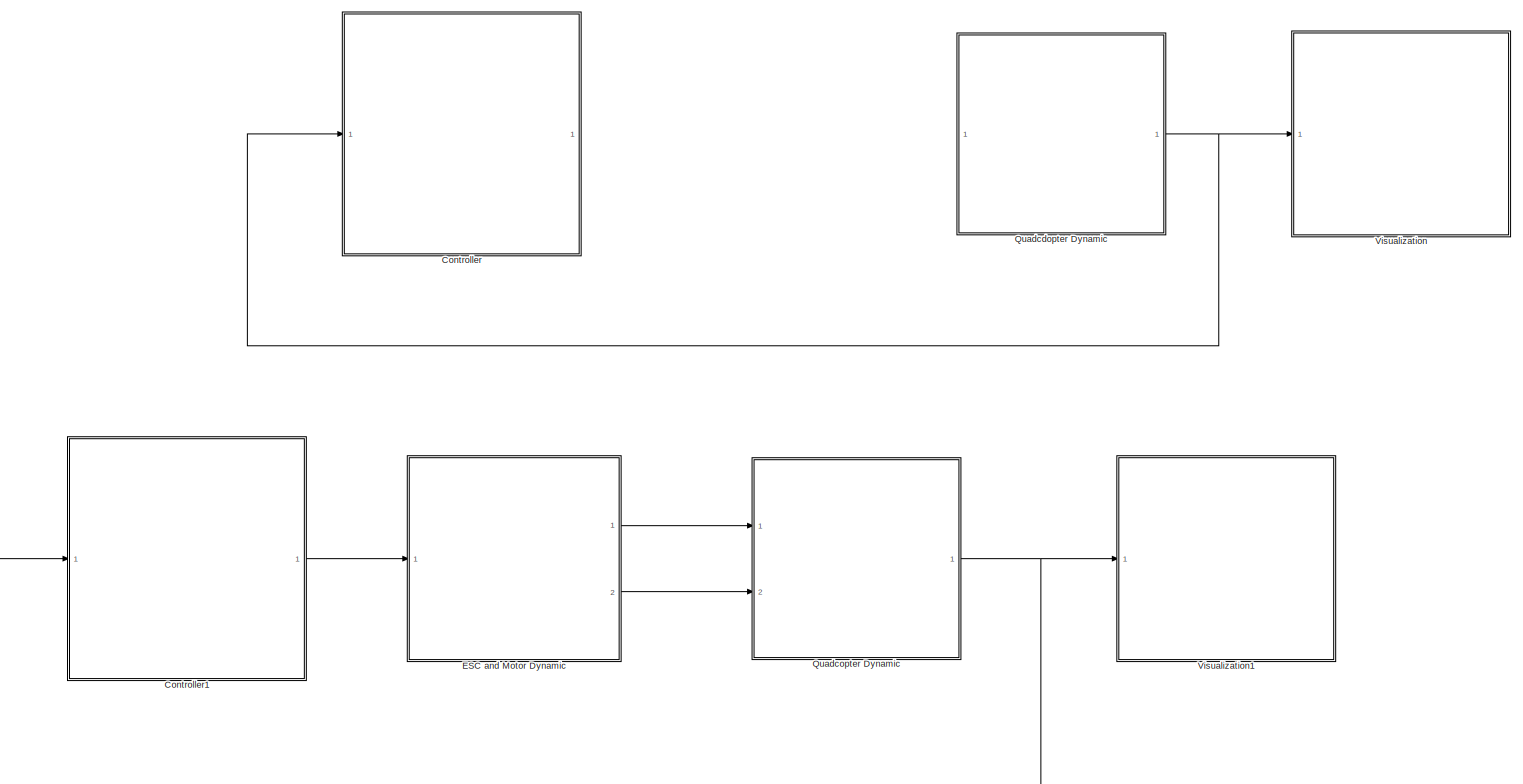
[diagram: root canvas - part 1/1, most of the canvas]
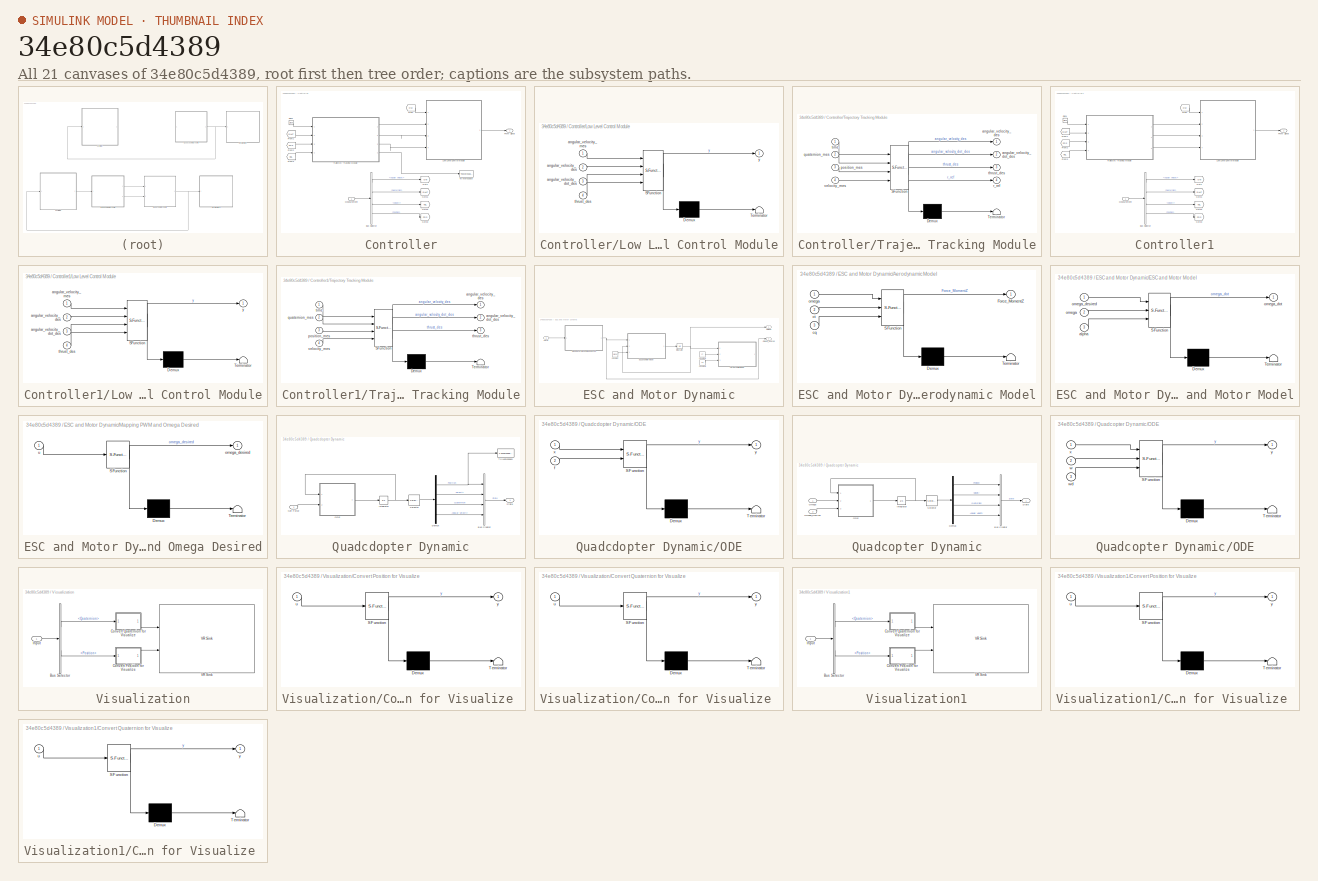
[diagram: thumbnail index - all 21 canvases of the model, root first then tree order]
MODEL slx_34e80c5d4389
KIND model
CONFIG AbsTol = auto
CONFIG EnableMultiTasking = off
CONFIG FixedStep = auto
CONFIG InitFcn = current_path = pwd;\nroot_folder = strfind(current_path, 'Trajectory_Tracking_Simulation');\nroot_path = current_path( 1 : ( root_folder + 29 ) );\ninitial_folder_path = string(root_path) + '/Initial';\naddpath(initial_folder_path);\nrun('Initial_Script.m');
CONFIG MaxStep = auto
CONFIG MinStep = auto
CONFIG RelTol = 1e-3
CONFIG SampleTimeConstraint = Unconstrained
CONFIG Solver = VariableStepAuto
CONFIG SolverName = VariableStepAuto
CONFIG StartTime = 0.0
CONFIG StopTime = 35
WORKSPACE source: MAT-file member
WORKSPACE object = [3707764736 2 1 1 1 1]
BLOCK [SubSystem] Controller
  Commented = on
  Ports = [1, 1]
  RequestExecContextInheritance = off
BLOCK [BusSelector] Controller/Bus Selector
  OutputAsBus = off
  OutputSignals = Angular Velocity,Quaternion,Velocity,Position
  Ports = [1, 4]
BLOCK [Clock] Controller/Clock
BLOCK [From] Controller/From
  GotoTag = OM
BLOCK [From] Controller/From1
  GotoTag = QUAT
BLOCK [From] Controller/From2
  GotoTag = POS
BLOCK [From] Controller/From3
  GotoTag = VEL
BLOCK [Goto] Controller/Goto
  GotoTag = OM
BLOCK [Goto] Controller/Goto1
  GotoTag = QUAT
BLOCK [Goto] Controller/Goto2
  GotoTag = VEL
BLOCK [Goto] Controller/Goto3
  GotoTag = POS
BLOCK [SubSystem] Controller/Low Level Control Module
  ErrorFcn = Stateflow.Translate.translate
  PermitHierarchicalResolution = ExplicitOnly
  Ports = [4, 1]
  RequestExecContextInheritance = off
  SFBlockType = MATLAB Function
  TreatAsAtomicUnit = on
BLOCK [Demux] Controller/Low Level Control Module/ Demux 
  Outputs = 1
  Ports = [1, 1]
BLOCK [S-Function] Controller/Low Level Control Module/ SFunction 
  EnableBusSupport = on
  FunctionName = sf_sfun
  PortCounts = [4 2]
  Ports = [4, 2]
  SFcnIsStateOwnerBlock = off
  SFunctionDeploymentMode = off
  Tag = Stateflow S-Function Trajectory_Tracking_Simulink 2
BLOCK [Terminator] Controller/Low Level Control Module/ Terminator 
BLOCK [Inport] Controller/Low Level Control Module/angular_velocity_des
  IconDisplay = Port number
  Port = 2
BLOCK [Inport] Controller/Low Level Control Module/angular_velocity_dot_des
  IconDisplay = Port number
  Port = 3
BLOCK [Inport] Controller/Low Level Control Module/angular_velocity_mes
  IconDisplay = Port number
BLOCK [Inport] Controller/Low Level Control Module/thrust_des
  IconDisplay = Port number
  Port = 4
BLOCK [Outport] Controller/Low Level Control Module/y
  IconDisplay = Port number
BLOCK [Inport] Controller/Measurement 
  IconDisplay = Port number
BLOCK [Outport] Controller/PWM Signal
  IconDisplay = Port number
BLOCK [ToWorkspace] Controller/To Workspace
  FixptAsFi = on
  MaxDataPoints = inf
  Ports = [1]
  SampleTime = -1
  SaveFormat = Timeseries
  VariableName = r_ref
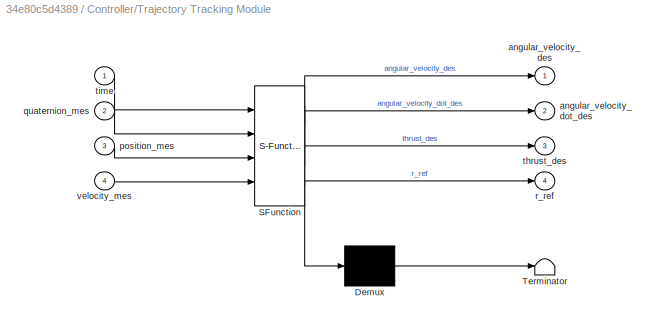
BLOCK [SubSystem] Controller/Trajectory Tracking Module
  ErrorFcn = Stateflow.Translate.translate
  PermitHierarchicalResolution = ExplicitOnly
  Ports = [4, 4]
  RequestExecContextInheritance = off
  SFBlockType = MATLAB Function
  TreatAsAtomicUnit = on
BLOCK [Demux] Controller/Trajectory Tracking Module/ Demux 
  Outputs = 1
  Ports = [1, 1]
BLOCK [S-Function] Controller/Trajectory Tracking Module/ SFunction 
  EnableBusSupport = on
  FunctionName = sf_sfun
  PortCounts = [4 5]
  Ports = [4, 5]
  SFcnIsStateOwnerBlock = off
  SFunctionDeploymentMode = off
  Tag = Stateflow S-Function Trajectory_Tracking_Simulink 6
BLOCK [Terminator] Controller/Trajectory Tracking Module/ Terminator 
BLOCK [Outport] Controller/Trajectory Tracking Module/angular_velocity_des
  IconDisplay = Port number
BLOCK [Outport] Controller/Trajectory Tracking Module/angular_velocity_dot_des
  IconDisplay = Port number
  Port = 2
BLOCK [Inport] Controller/Trajectory Tracking Module/position_mes
  IconDisplay = Port number
  Port = 3
BLOCK [Inport] Controller/Trajectory Tracking Module/quaternion_mes
  IconDisplay = Port number
  Port = 2
BLOCK [Outport] Controller/Trajectory Tracking Module/r_ref
  IconDisplay = Port number
  Port = 4
BLOCK [Outport] Controller/Trajectory Tracking Module/thrust_des
  IconDisplay = Port number
  Port = 3
BLOCK [Inport] Controller/Trajectory Tracking Module/time
  IconDisplay = Port number
BLOCK [Inport] Controller/Trajectory Tracking Module/velocity_mes
  IconDisplay = Port number
  Port = 4
BLOCK [SubSystem] Controller1
  Ports = [1, 1]
  RequestExecContextInheritance = off
BLOCK [BusSelector] Controller1/Bus Selector
  OutputAsBus = off
  OutputSignals = Angular Velocity,Quaternion,Velocity,Position
  Ports = [1, 4]
BLOCK [Clock] Controller1/Clock
BLOCK [From] Controller1/From
  GotoTag = OM
BLOCK [From] Controller1/From1
  GotoTag = QUAT
BLOCK [From] Controller1/From2
  GotoTag = POS
BLOCK [From] Controller1/From3
  GotoTag = VEL
BLOCK [Goto] Controller1/Goto
  GotoTag = OM
BLOCK [Goto] Controller1/Goto1
  GotoTag = QUAT
BLOCK [Goto] Controller1/Goto2
  GotoTag = VEL
BLOCK [Goto] Controller1/Goto3
  GotoTag = POS
BLOCK [SubSystem] Controller1/Low Level Control Module
  ErrorFcn = Stateflow.Translate.translate
  PermitHierarchicalResolution = ExplicitOnly
  Ports = [4, 1]
  RequestExecContextInheritance = off
  SFBlockType = MATLAB Function
  TreatAsAtomicUnit = on
BLOCK [Demux] Controller1/Low Level Control Module/ Demux 
  Outputs = 1
  Ports = [1, 1]
BLOCK [S-Function] Controller1/Low Level Control Module/ SFunction 
  EnableBusSupport = on
  FunctionName = sf_sfun
  PortCounts = [4 2]
  Ports = [4, 2]
  SFcnIsStateOwnerBlock = off
  SFunctionDeploymentMode = off
  Tag = Stateflow S-Function Trajectory_Tracking_Simulink 12
BLOCK [Terminator] Controller1/Low Level Control Module/ Terminator 
BLOCK [Inport] Controller1/Low Level Control Module/angular_velocity_des
  IconDisplay = Port number
  Port = 2
BLOCK [Inport] Controller1/Low Level Control Module/angular_velocity_dot_des
  IconDisplay = Port number
  Port = 3
BLOCK [Inport] Controller1/Low Level Control Module/angular_velocity_mes
  IconDisplay = Port number
BLOCK [Inport] Controller1/Low Level Control Module/thrust_des
  IconDisplay = Port number
  Port = 4
BLOCK [Outport] Controller1/Low Level Control Module/y
  IconDisplay = Port number
BLOCK [Inport] Controller1/Measurement 
  IconDisplay = Port number
BLOCK [Outport] Controller1/PWM Signal
  IconDisplay = Port number
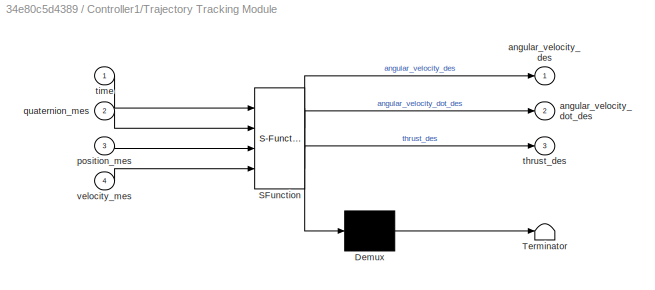
BLOCK [SubSystem] Controller1/Trajectory Tracking Module
  ErrorFcn = Stateflow.Translate.translate
  PermitHierarchicalResolution = ExplicitOnly
  Ports = [4, 3]
  RequestExecContextInheritance = off
  SFBlockType = MATLAB Function
  TreatAsAtomicUnit = on
BLOCK [Demux] Controller1/Trajectory Tracking Module/ Demux 
  Outputs = 1
  Ports = [1, 1]
BLOCK [S-Function] Controller1/Trajectory Tracking Module/ SFunction 
  EnableBusSupport = on
  FunctionName = sf_sfun
  PortCounts = [4 4]
  Ports = [4, 4]
  SFcnIsStateOwnerBlock = off
  SFunctionDeploymentMode = off
  Tag = Stateflow S-Function Trajectory_Tracking_Simulink 13
BLOCK [Terminator] Controller1/Trajectory Tracking Module/ Terminator 
BLOCK [Outport] Controller1/Trajectory Tracking Module/angular_velocity_des
  IconDisplay = Port number
BLOCK [Outport] Controller1/Trajectory Tracking Module/angular_velocity_dot_des
  IconDisplay = Port number
  Port = 2
BLOCK [Inport] Controller1/Trajectory Tracking Module/position_mes
  IconDisplay = Port number
  Port = 3
BLOCK [Inport] Controller1/Trajectory Tracking Module/quaternion_mes
  IconDisplay = Port number
  Port = 2
BLOCK [Outport] Controller1/Trajectory Tracking Module/thrust_des
  IconDisplay = Port number
  Port = 3
BLOCK [Inport] Controller1/Trajectory Tracking Module/time
  IconDisplay = Port number
BLOCK [Inport] Controller1/Trajectory Tracking Module/velocity_mes
  IconDisplay = Port number
  Port = 4
BLOCK [SubSystem] ESC and Motor Dynamic
  Ports = [1, 2]
  RequestExecContextInheritance = off
BLOCK [SubSystem] ESC and Motor Dynamic/Aerodynamic Model
  Commented = on
  ErrorFcn = Stateflow.Translate.translate
  PermitHierarchicalResolution = ExplicitOnly
  Ports = [3, 1]
  RequestExecContextInheritance = off
  SFBlockType = MATLAB Function
  TreatAsAtomicUnit = on
BLOCK [Demux] ESC and Motor Dynamic/Aerodynamic Model/ Demux 
  Outputs = 1
  Ports = [1, 1]
BLOCK [S-Function] ESC and Motor Dynamic/Aerodynamic Model/ SFunction 
  EnableBusSupport = on
  FunctionName = sf_sfun
  PortCounts = [3 2]
  Ports = [3, 2]
  SFcnIsStateOwnerBlock = off
  SFunctionDeploymentMode = off
  Tag = Stateflow S-Function Trajectory_Tracking_Simulink 7
BLOCK [Terminator] ESC and Motor Dynamic/Aerodynamic Model/ Terminator 
BLOCK [Outport] ESC and Motor Dynamic/Aerodynamic Model/Force_MomentZ
  IconDisplay = Port number
BLOCK [Inport] ESC and Motor Dynamic/Aerodynamic Model/cq
  IconDisplay = Port number
  Port = 3
BLOCK [Inport] ESC and Motor Dynamic/Aerodynamic Model/ct
  IconDisplay = Port number
  Port = 2
BLOCK [Inport] ESC and Motor Dynamic/Aerodynamic Model/omega
  IconDisplay = Port number
BLOCK [Constant] ESC and Motor Dynamic/Constant
  Value = alpha
BLOCK [Constant] ESC and Motor Dynamic/Constant1
  Commented = on
  Value = ct
BLOCK [Constant] ESC and Motor Dynamic/Constant2
  Commented = on
  Value = cq
BLOCK [SubSystem] ESC and Motor Dynamic/ESC and Motor Model
  ErrorFcn = Stateflow.Translate.translate
  PermitHierarchicalResolution = ExplicitOnly
  Ports = [3, 1]
  RequestExecContextInheritance = off
  SFBlockType = MATLAB Function
  TreatAsAtomicUnit = on
BLOCK [Demux] ESC and Motor Dynamic/ESC and Motor Model/ Demux 
  Outputs = 1
  Ports = [1, 1]
BLOCK [S-Function] ESC and Motor Dynamic/ESC and Motor Model/ SFunction 
  EnableBusSupport = on
  FunctionName = sf_sfun
  PortCounts = [3 2]
  Ports = [3, 2]
  SFcnIsStateOwnerBlock = off
  SFunctionDeploymentMode = off
  Tag = Stateflow S-Function Trajectory_Tracking_Simulink 8
BLOCK [Terminator] ESC and Motor Dynamic/ESC and Motor Model/ Terminator 
BLOCK [Inport] ESC and Motor Dynamic/ESC and Motor Model/alpha
  IconDisplay = Port number
  Port = 3
BLOCK [Inport] ESC and Motor Dynamic/ESC and Motor Model/omega
  IconDisplay = Port number
  Port = 2
BLOCK [Inport] ESC and Motor Dynamic/ESC and Motor Model/omega_desired
  IconDisplay = Port number
BLOCK [Outport] ESC and Motor Dynamic/ESC and Motor Model/omega_dot
  IconDisplay = Port number
BLOCK [Integrator] ESC and Motor Dynamic/Integrator
  InitialCondition = 516.5 * ones(4,1)
  Ports = [1, 1]
BLOCK [SubSystem] ESC and Motor Dynamic/Mapping PWM and Omega Desired
  ErrorFcn = Stateflow.Translate.translate
  PermitHierarchicalResolution = ExplicitOnly
  Ports = [1, 1]
  RequestExecContextInheritance = off
  SFBlockType = MATLAB Function
  TreatAsAtomicUnit = on
BLOCK [Demux] ESC and Motor Dynamic/Mapping PWM and Omega Desired/ Demux 
  Outputs = 1
  Ports = [1, 1]
BLOCK [S-Function] ESC and Motor Dynamic/Mapping PWM and Omega Desired/ SFunction 
  EnableBusSupport = on
  FunctionName = sf_sfun
  PortCounts = [1 2]
  Ports = [1, 2]
  SFcnIsStateOwnerBlock = off
  SFunctionDeploymentMode = off
  Tag = Stateflow S-Function Trajectory_Tracking_Simulink 9
BLOCK [Terminator] ESC and Motor Dynamic/Mapping PWM and Omega Desired/ Terminator 
BLOCK [Outport] ESC and Motor Dynamic/Mapping PWM and Omega Desired/omega_desired
  IconDisplay = Port number
BLOCK [Inport] ESC and Motor Dynamic/Mapping PWM and Omega Desired/u
  IconDisplay = Port number
BLOCK [Outport] ESC and Motor Dynamic/Omega
  IconDisplay = Port number
BLOCK [Outport] ESC and Motor Dynamic/Omega_desired
  IconDisplay = Port number
  Port = 2
BLOCK [Inport] ESC and Motor Dynamic/PWM
  IconDisplay = Port number
BLOCK [SubSystem] Quadcdopter Dynamic
  Commented = on
  Ports = [1, 1]
  RequestExecContextInheritance = off
BLOCK [BusCreator] Quadcdopter Dynamic/Bus Creator
  DisplayOption = bar
  InheritFromInputs = on
  Inputs = 4
  Ports = [4, 1]
BLOCK [Demux] Quadcdopter Dynamic/Demux
  DisplayOption = bar
  Outputs = [3 3 4 3]
  Ports = [1, 4]
BLOCK [Integrator] Quadcdopter Dynamic/Integrator
  InitialCondition = [zeros(3,1); zeros(3,1); [1; 0; 0; 0]; [0; 0; 0]]
  Ports = [1, 1]
BLOCK [Inport] Quadcdopter Dynamic/Net Force 
  IconDisplay = Port number
BLOCK [SubSystem] Quadcdopter Dynamic/ODE
  ErrorFcn = Stateflow.Translate.translate
  PermitHierarchicalResolution = ExplicitOnly
  Ports = [2, 1]
  RequestExecContextInheritance = off
  SFBlockType = MATLAB Function
  TreatAsAtomicUnit = on
BLOCK [Demux] Quadcdopter Dynamic/ODE/ Demux 
  Outputs = 1
  Ports = [1, 1]
BLOCK [S-Function] Quadcdopter Dynamic/ODE/ SFunction 
  EnableBusSupport = on
  FunctionName = sf_sfun
  PortCounts = [2 2]
  Ports = [2, 2]
  SFcnIsStateOwnerBlock = off
  SFunctionDeploymentMode = off
  Tag = Stateflow S-Function Trajectory_Tracking_Simulink 1
BLOCK [Terminator] Quadcdopter Dynamic/ODE/ Terminator 
BLOCK [Inport] Quadcdopter Dynamic/ODE/f
  IconDisplay = Port number
  Port = 2
BLOCK [Inport] Quadcdopter Dynamic/ODE/x
  IconDisplay = Port number
BLOCK [Outport] Quadcdopter Dynamic/ODE/y
  IconDisplay = Port number
BLOCK [Selector] Quadcdopter Dynamic/Selector
  IndexOptions = Select all
  Indices = 1
  InputPortWidth = 13
  OutputSizes = 1
  Ports = [1, 1]
BLOCK [Outport] Quadcdopter Dynamic/State 
  IconDisplay = Port number
BLOCK [ToWorkspace] Quadcdopter Dynamic/To Workspace
  FixptAsFi = on
  MaxDataPoints = inf
  Ports = [1]
  SampleTime = -1
  SaveFormat = Timeseries
  VariableName = r
BLOCK [SubSystem] Quadcopter Dynamic
  Ports = [2, 1]
  RequestExecContextInheritance = off
BLOCK [BusCreator] Quadcopter Dynamic/Bus Creator
  DisplayOption = bar
  InheritFromInputs = on
  Inputs = 4
  Ports = [4, 1]
BLOCK [Demux] Quadcopter Dynamic/Demux
  DisplayOption = bar
  Outputs = [3 3 4 3]
  Ports = [1, 4]
BLOCK [Integrator] Quadcopter Dynamic/Integrator
  InitialCondition = [zeros(3,1); zeros(3,1); [1; 0;0 ;0]; [0; 0; 0]]
  Ports = [1, 1]
BLOCK [SubSystem] Quadcopter Dynamic/ODE
  ErrorFcn = Stateflow.Translate.translate
  PermitHierarchicalResolution = ExplicitOnly
  Ports = [3, 1]
  RequestExecContextInheritance = off
  SFBlockType = MATLAB Function
  TreatAsAtomicUnit = on
BLOCK [Demux] Quadcopter Dynamic/ODE/ Demux 
  Outputs = 1
  Ports = [1, 1]
BLOCK [S-Function] Quadcopter Dynamic/ODE/ SFunction 
  EnableBusSupport = on
  FunctionName = sf_sfun
  PortCounts = [3 2]
  Ports = [3, 2]
  SFcnIsStateOwnerBlock = off
  SFunctionDeploymentMode = off
  Tag = Stateflow S-Function Trajectory_Tracking_Simulink 3
BLOCK [Terminator] Quadcopter Dynamic/ODE/ Terminator 
BLOCK [Inport] Quadcopter Dynamic/ODE/w
  IconDisplay = Port number
  Port = 2
BLOCK [Inport] Quadcopter Dynamic/ODE/wd
  IconDisplay = Port number
  Port = 3
BLOCK [Inport] Quadcopter Dynamic/ODE/x
  IconDisplay = Port number
BLOCK [Outport] Quadcopter Dynamic/ODE/y
  IconDisplay = Port number
BLOCK [Inport] Quadcopter Dynamic/Omega 
  IconDisplay = Port number
BLOCK [Inport] Quadcopter Dynamic/Omega_Desired
  IconDisplay = Port number
  Port = 2
BLOCK [Selector] Quadcopter Dynamic/Selector
  IndexOptions = Select all
  Indices = 1
  InputPortWidth = 13
  OutputSizes = 1
  Ports = [1, 1]
BLOCK [Outport] Quadcopter Dynamic/State 
  IconDisplay = Port number
BLOCK [SubSystem] Visualization
  Commented = on
  Ports = [1]
  RequestExecContextInheritance = off
BLOCK [BusSelector] Visualization/Bus Selector
  OutputAsBus = off
  OutputSignals = Quaternion,Position
  Ports = [1, 2]
BLOCK [SubSystem] Visualization/Convert Position for Visualize 
  ErrorFcn = Stateflow.Translate.translate
  PermitHierarchicalResolution = ExplicitOnly
  Ports = [1, 1]
  RequestExecContextInheritance = off
  SFBlockType = MATLAB Function
  TreatAsAtomicUnit = on
BLOCK [Demux] Visualization/Convert Position for Visualize / Demux 
  Outputs = 1
  Ports = [1, 1]
BLOCK [S-Function] Visualization/Convert Position for Visualize / SFunction 
  EnableBusSupport = on
  FunctionName = sf_sfun
  PortCounts = [1 2]
  Ports = [1, 2]
  SFcnIsStateOwnerBlock = off
  SFunctionDeploymentMode = off
  Tag = Stateflow S-Function Trajectory_Tracking_Simulink 4
BLOCK [Terminator] Visualization/Convert Position for Visualize / Terminator 
BLOCK [Inport] Visualization/Convert Position for Visualize /u
  IconDisplay = Port number
BLOCK [Outport] Visualization/Convert Position for Visualize /y
  IconDisplay = Port number
BLOCK [SubSystem] Visualization/Convert Quaternion for Visualize 
  ErrorFcn = Stateflow.Translate.translate
  PermitHierarchicalResolution = ExplicitOnly
  Ports = [1, 1]
  RequestExecContextInheritance = off
  SFBlockType = MATLAB Function
  TreatAsAtomicUnit = on
BLOCK [Demux] Visualization/Convert Quaternion for Visualize / Demux 
  Outputs = 1
  Ports = [1, 1]
BLOCK [S-Function] Visualization/Convert Quaternion for Visualize / SFunction 
  EnableBusSupport = on
  FunctionName = sf_sfun
  PortCounts = [1 2]
  Ports = [1, 2]
  SFcnIsStateOwnerBlock = off
  SFunctionDeploymentMode = off
  Tag = Stateflow S-Function Trajectory_Tracking_Simulink 5
BLOCK [Terminator] Visualization/Convert Quaternion for Visualize / Terminator 
BLOCK [Inport] Visualization/Convert Quaternion for Visualize /u
  IconDisplay = Port number
BLOCK [Outport] Visualization/Convert Quaternion for Visualize /y
  IconDisplay = Port number
BLOCK [Inport] Visualization/Input 
  IconDisplay = Port number
BLOCK [Reference] Visualization/VR Sink  REF=vrlib/VR Sink
  InstantiateOnLoad = on
  Ports = [2]
  SourceBlock = vrlib/VR Sink
  SourceProductBaseCode = SL
  SourceProductName = Simulink
  SourceType = Virtual Reality Sink
BLOCK [SubSystem] Visualization1
  Ports = [1]
  RequestExecContextInheritance = off
BLOCK [BusSelector] Visualization1/Bus Selector
  OutputAsBus = off
  OutputSignals = Quaternion,Position
  Ports = [1, 2]
BLOCK [SubSystem] Visualization1/Convert Position for Visualize 
  ErrorFcn = Stateflow.Translate.translate
  PermitHierarchicalResolution = ExplicitOnly
  Ports = [1, 1]
  RequestExecContextInheritance = off
  SFBlockType = MATLAB Function
  TreatAsAtomicUnit = on
BLOCK [Demux] Visualization1/Convert Position for Visualize / Demux 
  Outputs = 1
  Ports = [1, 1]
BLOCK [S-Function] Visualization1/Convert Position for Visualize / SFunction 
  EnableBusSupport = on
  FunctionName = sf_sfun
  PortCounts = [1 2]
  Ports = [1, 2]
  SFcnIsStateOwnerBlock = off
  SFunctionDeploymentMode = off
  Tag = Stateflow S-Function Trajectory_Tracking_Simulink 10
BLOCK [Terminator] Visualization1/Convert Position for Visualize / Terminator 
BLOCK [Inport] Visualization1/Convert Position for Visualize /u
  IconDisplay = Port number
BLOCK [Outport] Visualization1/Convert Position for Visualize /y
  IconDisplay = Port number
BLOCK [SubSystem] Visualization1/Convert Quaternion for Visualize 
  ErrorFcn = Stateflow.Translate.translate
  PermitHierarchicalResolution = ExplicitOnly
  Ports = [1, 1]
  RequestExecContextInheritance = off
  SFBlockType = MATLAB Function
  TreatAsAtomicUnit = on
BLOCK [Demux] Visualization1/Convert Quaternion for Visualize / Demux 
  Outputs = 1
  Ports = [1, 1]
BLOCK [S-Function] Visualization1/Convert Quaternion for Visualize / SFunction 
  EnableBusSupport = on
  FunctionName = sf_sfun
  PortCounts = [1 2]
  Ports = [1, 2]
  SFcnIsStateOwnerBlock = off
  SFunctionDeploymentMode = off
  Tag = Stateflow S-Function Trajectory_Tracking_Simulink 11
BLOCK [Terminator] Visualization1/Convert Quaternion for Visualize / Terminator 
BLOCK [Inport] Visualization1/Convert Quaternion for Visualize /u
  IconDisplay = Port number
BLOCK [Outport] Visualization1/Convert Quaternion for Visualize /y
  IconDisplay = Port number
BLOCK [Inport] Visualization1/Input 
  IconDisplay = Port number
BLOCK [Reference] Visualization1/VR Sink  REF=vrlib/VR Sink
  InstantiateOnLoad = on
  Ports = [2]
  SourceBlock = vrlib/VR Sink
  SourceProductBaseCode = SL
  SourceProductName = Simulink
  SourceType = Virtual Reality Sink
LINE Controller/Bus Selector:1 -> Controller/Goto:1
LINE Controller/Bus Selector:2 -> Controller/Goto1:1
LINE Controller/Bus Selector:3 -> Controller/Goto2:1
LINE Controller/Bus Selector:4 -> Controller/Goto3:1
LINE Controller/Clock:1 -> Controller/Trajectory Tracking Module:1
LINE Controller/From1:1 -> Controller/Trajectory Tracking Module:2
LINE Controller/From2:1 -> Controller/Trajectory Tracking Module:3
LINE Controller/From3:1 -> Controller/Trajectory Tracking Module:4
LINE Controller/From:1 -> Controller/Low Level Control Module:1
LINE Controller/Low Level Control Module:1 -> Controller/PWM Signal:1
LINE Controller/Measurement :1 -> Controller/Bus Selector:1
LINE Controller/Trajectory Tracking Module:1 -> Controller/Low Level Control Module:2
LINE Controller/Trajectory Tracking Module:2 -> Controller/Low Level Control Module:3
LINE Controller/Trajectory Tracking Module:3 -> Controller/Low Level Control Module:4
LINE Controller/Trajectory Tracking Module:4 -> Controller/To Workspace:1
LINE Controller1/Bus Selector:1 -> Controller1/Goto:1
LINE Controller1/Bus Selector:2 -> Controller1/Goto1:1
LINE Controller1/Bus Selector:3 -> Controller1/Goto2:1
LINE Controller1/Bus Selector:4 -> Controller1/Goto3:1
LINE Controller1/Clock:1 -> Controller1/Trajectory Tracking Module:1
LINE Controller1/From1:1 -> Controller1/Trajectory Tracking Module:2
LINE Controller1/From2:1 -> Controller1/Trajectory Tracking Module:3
LINE Controller1/From3:1 -> Controller1/Trajectory Tracking Module:4
LINE Controller1/From:1 -> Controller1/Low Level Control Module:1
LINE Controller1/Low Level Control Module:1 -> Controller1/PWM Signal:1
LINE Controller1/Measurement :1 -> Controller1/Bus Selector:1
LINE Controller1/Trajectory Tracking Module:1 -> Controller1/Low Level Control Module:2
LINE Controller1/Trajectory Tracking Module:2 -> Controller1/Low Level Control Module:3
LINE Controller1/Trajectory Tracking Module:3 -> Controller1/Low Level Control Module:4
LINE Controller1:1 -> ESC and Motor Dynamic:1
LINE ESC and Motor Dynamic/Constant1:1 -> ESC and Motor Dynamic/Aerodynamic Model:2
LINE ESC and Motor Dynamic/Constant2:1 -> ESC and Motor Dynamic/Aerodynamic Model:3
LINE ESC and Motor Dynamic/Constant:1 -> ESC and Motor Dynamic/ESC and Motor Model:3
LINE ESC and Motor Dynamic/ESC and Motor Model:1 -> ESC and Motor Dynamic/Integrator:1
NET ESC and Motor Dynamic/Integrator:1 -> ESC and Motor Dynamic/Aerodynamic Model:1, ESC and Motor Dynamic/ESC and Motor Model:2, ESC and Motor Dynamic/Omega:1
NET ESC and Motor Dynamic/Mapping PWM and Omega Desired:1 -> ESC and Motor Dynamic/ESC and Motor Model:1, ESC and Motor Dynamic/Omega_desired:1
LINE ESC and Motor Dynamic/PWM:1 -> ESC and Motor Dynamic/Mapping PWM and Omega Desired:1
LINE ESC and Motor Dynamic:1 -> Quadcopter Dynamic:1
LINE ESC and Motor Dynamic:2 -> Quadcopter Dynamic:2
LINE Quadcdopter Dynamic/Bus Creator:1 -> Quadcdopter Dynamic/State :1
NET Quadcdopter Dynamic/Demux:1 -> Quadcdopter Dynamic/Bus Creator:1, Quadcdopter Dynamic/To Workspace:1
LINE Quadcdopter Dynamic/Demux:2 -> Quadcdopter Dynamic/Bus Creator:2
LINE Quadcdopter Dynamic/Demux:3 -> Quadcdopter Dynamic/Bus Creator:3
LINE Quadcdopter Dynamic/Demux:4 -> Quadcdopter Dynamic/Bus Creator:4
NET Quadcdopter Dynamic/Integrator:1 -> Quadcdopter Dynamic/ODE:1, Quadcdopter Dynamic/Selector:1
LINE Quadcdopter Dynamic/Net Force :1 -> Quadcdopter Dynamic/ODE:2
LINE Quadcdopter Dynamic/ODE:1 -> Quadcdopter Dynamic/Integrator:1
LINE Quadcdopter Dynamic/Selector:1 -> Quadcdopter Dynamic/Demux:1
NET Quadcdopter Dynamic:1 -> Controller:1, Visualization:1
LINE Quadcopter Dynamic/Bus Creator:1 -> Quadcopter Dynamic/State :1
LINE Quadcopter Dynamic/Demux:1 -> Quadcopter Dynamic/Bus Creator:1
LINE Quadcopter Dynamic/Demux:2 -> Quadcopter Dynamic/Bus Creator:2
LINE Quadcopter Dynamic/Demux:3 -> Quadcopter Dynamic/Bus Creator:3
LINE Quadcopter Dynamic/Demux:4 -> Quadcopter Dynamic/Bus Creator:4
NET Quadcopter Dynamic/Integrator:1 -> Quadcopter Dynamic/ODE:1, Quadcopter Dynamic/Selector:1
LINE Quadcopter Dynamic/ODE:1 -> Quadcopter Dynamic/Integrator:1
LINE Quadcopter Dynamic/Omega :1 -> Quadcopter Dynamic/ODE:2
LINE Quadcopter Dynamic/Omega_Desired:1 -> Quadcopter Dynamic/ODE:3
LINE Quadcopter Dynamic/Selector:1 -> Quadcopter Dynamic/Demux:1
NET Quadcopter Dynamic:1 -> Controller1:1, Visualization1:1
LINE Visualization/Bus Selector:1 -> Visualization/Convert Quaternion for Visualize :1
LINE Visualization/Bus Selector:2 -> Visualization/Convert Position for Visualize :1
LINE Visualization/Convert Position for Visualize :1 -> Visualization/VR Sink:2
LINE Visualization/Convert Quaternion for Visualize :1 -> Visualization/VR Sink:1
LINE Visualization/Input :1 -> Visualization/Bus Selector:1
LINE Visualization1/Bus Selector:1 -> Visualization1/Convert Quaternion for Visualize :1
LINE Visualization1/Bus Selector:2 -> Visualization1/Convert Position for Visualize :1
LINE Visualization1/Convert Position for Visualize :1 -> Visualization1/VR Sink:2
LINE Visualization1/Convert Quaternion for Visualize :1 -> Visualization1/VR Sink:1
LINE Visualization1/Input :1 -> Visualization1/Bus Selector:1
note: NET lines group one-source signal fan-out (src -> all destinations, sorted); 1:1 wires keep LINE
CHART Quadcdopter Dynamic/ODE states=1 transitions=1
  STATE_LABEL 'eML_blk_kernel()'
  STATE_LABEL "SCRIPT:\nfunction y = fcn(x, f)\n%%\nm = 1.18;\ng = [0; 0; -9.81];\na = 0.255/2;\nk = 0.0174;\nIxx = 0.0144;\nIyy = 0.0145;\nIzz = 0.0156;\nJ = diag([Ixx, Iyy, Izz]);\n\n%%\nr = x(1:3);\nv = x(4:6);\nq = x(7:10);\nomega = x(11:13);\n\n%%\ntorque = [a, -a, -a, a; -a, -a, a, a; k, -k, k, -k] * f;  \nc_body_frame = [0, 0, 0, (1/m) * sum(f)];\nc_world_frame = quatmultiply(quatmultiply(q', c_body_frame), quatconj(q'))';\nOM...<+222ch>"
CHART Controller/Low Level Control Module states=1 transitions=1
  STATE_LABEL 'eML_blk_kernel()'
  STATE_LABEL 'SCRIPT:\nfunction y = fcn(angular_velocity_mes, angular_velocity_des, angular_velocity_dot_des, thrust_des)\n    persistent mixer omega_controller\n    if isempty(mixer) \n        mixer = Mixer();\n    end\n    \n    if isempty(omega_controller)\n        omega_controller = AngularVelocityController();\n    end\n    \n    omega_controller.updateAngularVelocityDesired(angular_velocity_des, angular_velocity_dot...<+230ch>'
CHART Quadcopter Dynamic/ODE states=1 transitions=1
  STATE_LABEL 'eML_blk_kernel()'
  STATE_LABEL "SCRIPT:\nfunction y = fcn(x, w, wd)\n%%\nm = 1.18; % vehicle's mass\ng = [0; 0; -9.81]; % gravity vector\na = 0.255/2; % half arm lenght\nIxx = 0.0257; % \nIyy = 0.0255; %\nIzz = 0.0321; %\nIo = diag([Ixx, Iyy, Izz]); % vehicle's moment inertia\nIr = 8.67 * 1e-5; % rotor blade moment inertial\nct = 3.677609694514498e-06; % thrust coefficent\ncq = ct / 12; % moment coefficient\nrc = [7 * 1e-2; 6 * 1e-2; 0]; % c...<+1068ch>"
CHART Visualization/Convert Position for Visualize
 states=1 transitions=1
  STATE_LABEL 'eML_blk_kernel()'
  STATE_LABEL "SCRIPT:\nfunction y = fcn(u)\ntemp = quatmultiply(quatmultiply([0.5, -0.5, 0.5, 0.5], [0, u']), [0.5, 0.5, -0.5, -0.5]);\ny = temp(2:end);\n"
CHART Visualization/Convert Quaternion for Visualize
 states=1 transitions=1
  STATE_LABEL 'eML_blk_kernel()'
  STATE_LABEL 'SCRIPT:\nfunction y = fcn(u)\nu = u./norm(u);\nrotation_angle = 2 * acos(u(1));\nrotation_axis = u(2:end)./(sin(0.5 * rotation_angle));\ny = [0, -1, 0, 0; 0, 0, 1, 0; -1, 0, 0, 0; 0, 0, 0, 1]*[rotation_axis; rotation_angle];\n'
CHART Controller/Trajectory Tracking Module states=1 transitions=1
  STATE_LABEL 'eML_blk_kernel()'
  STATE_LABEL 'SCRIPT:\nfunction [angular_velocity_des, angular_velocity_dot_des, thrust_des, r_ref] = fcn(time, quaternion_mes, position_mes, velocity_mes)\n    persistent observer position_controller attitude_controller generator\n    if isempty(observer)\n        observer = GeneralObserver();\n        observer.getInitMeasurement(quaternion_mes, position_mes);\n        observer.init_time = time;\n    end\n    \n    if ...<+947ch>'
CHART ESC and Motor Dynamic/Aerodynamic Model states=1 transitions=1
  STATE_LABEL 'eML_blk_kernel()'
  STATE_LABEL 'SCRIPT:\nfunction Force_MomentZ = fcn(omega, ct, cq)\n% ct = 3.677609694514498e-06;\n% cq = ct / 1.5;\nForce_MomentZ = [ct * omega.^2; cq * omega.^2];           \nend\n'
CHART ESC and Motor Dynamic/ESC and Motor Model states=1 transitions=1
  STATE_LABEL 'eML_blk_kernel()'
  STATE_LABEL 'SCRIPT:\nfunction omega_dot = fcn(omega_desired, omega, alpha)\n% alpha = 23 * 1e-3;\nomega_dot = (1 / alpha) * (omega_desired - omega);             \nend\n'
CHART ESC and Motor Dynamic/Mapping PWM and Omega Desired states=1 transitions=1
  STATE_LABEL 'eML_blk_kernel()'
  STATE_LABEL 'SCRIPT:\nfunction omega_desired = fcn(u)\nomega_d_max = 1701;\nomega_d_min = 516.5;\nomega_desired = (omega_d_max - omega_d_min) * u + omega_d_min;\nend\n'
CHART Visualization1/Convert Position for Visualize
 states=1 transitions=1
  STATE_LABEL 'eML_blk_kernel()'
  STATE_LABEL "SCRIPT:\nfunction y = fcn(u)\ntemp = quatmultiply(quatmultiply([0.5, -0.5, 0.5, 0.5], [0, u']), [0.5, 0.5, -0.5, -0.5]);\ny = temp(2:end);\n"
CHART Visualization1/Convert Quaternion for Visualize
 states=1 transitions=1
  STATE_LABEL 'eML_blk_kernel()'
  STATE_LABEL 'SCRIPT:\nfunction y = fcn(u)\nu = u./norm(u);\nrotation_angle = 2 * acos(u(1));\nrotation_axis = u(2:end)./(sin(0.5 * rotation_angle));\ny = [0, -1, 0, 0; 0, 0, 1, 0; -1, 0, 0, 0; 0, 0, 0, 1]*[rotation_axis; rotation_angle];\n'
CHART Controller1/Low Level Control Module states=1 transitions=1
  STATE_LABEL 'eML_blk_kernel()'
  STATE_LABEL 'SCRIPT:\nfunction y = fcn(angular_velocity_mes, angular_velocity_des, angular_velocity_dot_des, thrust_des)\n    persistent mixer omega_controller\n    if isempty(mixer) \n        mixer = Mixer();\n    end\n    \n    if isempty(omega_controller)\n        omega_controller = AngularVelocityController();\n    end\n    \n    omega_controller.updateAngularVelocityDesired(angular_velocity_des, angular_velocity_dot...<+230ch>'
CHART Controller1/Trajectory Tracking Module states=1 transitions=1
  STATE_LABEL 'eML_blk_kernel()'
  STATE_LABEL 'SCRIPT:\nfunction [angular_velocity_des, angular_velocity_dot_des, thrust_des] = fcn(time, quaternion_mes, position_mes, velocity_mes)\n    persistent observer position_controller attitude_controller generator\n    if isempty(observer)\n        observer = GeneralObserver();\n        observer.getInitMeasurement(quaternion_mes, position_mes);\n        observer.init_time = time;\n    end\n    \n    if isempty...<+911ch>'
